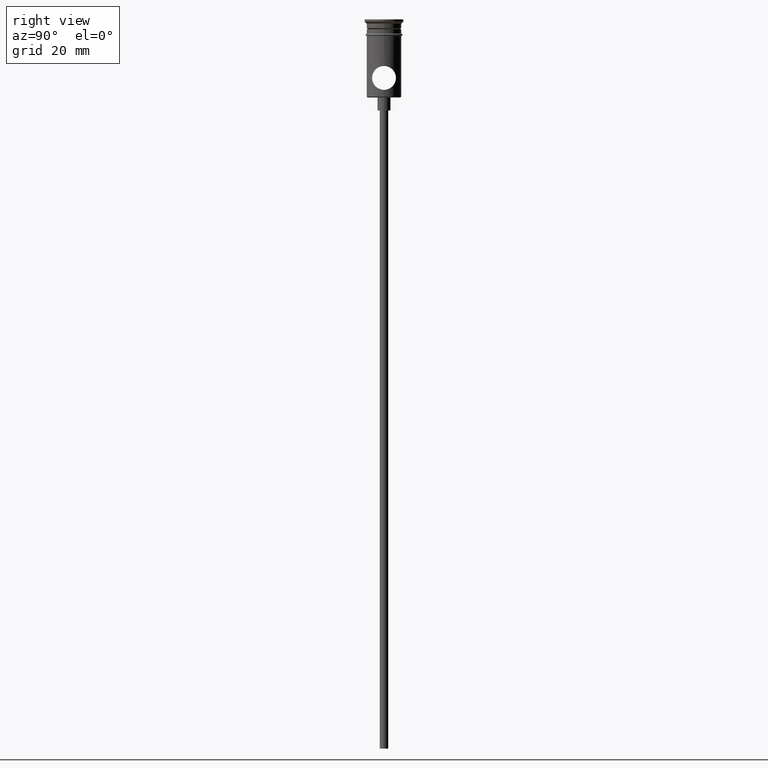
[diagram: clean part render]
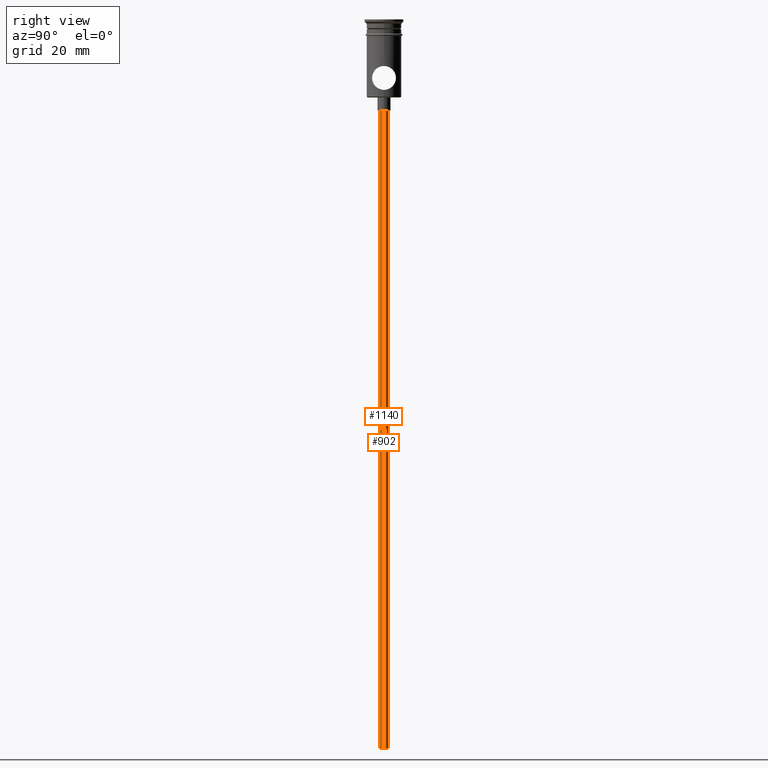
[diagram: same view with one multi-face feature highlighted, each face labeled with its STEP entity id]
A machine part, right view. The highlighted faces form ONE feature: a constant-radius fillet chain: 2 tangent blend faces with common blend radius 1 mm. The faces share edges in the B-rep.
Their STEP definitions:
[1] entity #1140 (Cylinder):
#2 = EDGE_CURVE ( 'NONE', #297, #452, #1032, .T. ) ;
#94 = CARTESIAN_POINT ( 'NONE',  ( 0.9999999999999997780, 0.000000000000000000, -167.9999999999999716 ) ) ;
#122 = ORIENTED_EDGE ( 'NONE', *, *, #1400, .F. ) ;
#145 = CARTESIAN_POINT ( 'NONE',  ( -0.9999999999999997780, 1.224646799147352961E-16, -20.99999999999999645 ) ) ;
#146 = EDGE_CURVE ( 'NONE', #452, #1413, #221, .T. ) ;
#154 = CARTESIAN_POINT ( 'NONE',  ( 0.000000000000000000, 0.000000000000000000, -20.99999999999999645 ) ) ;
#164 = FACE_OUTER_BOUND ( 'NONE', #371, .T. ) ;
#177 = DIRECTION ( 'NONE',  ( -0.000000000000000000, -0.000000000000000000, 1.000000000000000000 ) ) ;
#221 = CIRCLE ( 'NONE', #327, 0.9999999999999997780 ) ;
#297 = VERTEX_POINT ( 'NONE', #94 ) ;
#317 = EDGE_CURVE ( 'NONE', #297, #331, #934, .T. ) ;
#327 = AXIS2_PLACEMENT_3D ( 'NONE', #154, #1345, #716 ) ;
#331 = VERTEX_POINT ( 'NONE', #765 ) ;
#366 = VECTOR ( 'NONE', #1364, 1000.000000000000000 ) ;
#371 = EDGE_LOOP ( 'NONE', ( #122, #1249, #1039, #1225 ) ) ;
#379 = CYLINDRICAL_SURFACE ( 'NONE', #641, 0.9999999999999997780 ) ;
#406 = CARTESIAN_POINT ( 'NONE',  ( 0.9999999999999997780, 0.000000000000000000, -20.99999999999999645 ) ) ;
#452 = VERTEX_POINT ( 'NONE', #406 ) ;
#494 = CARTESIAN_POINT ( 'NONE',  ( 0.9999999999999997780, 0.000000000000000000, -167.9999999999999716 ) ) ;
#495 = CARTESIAN_POINT ( 'NONE',  ( 0.000000000000000000, 0.000000000000000000, -167.9999999999999716 ) ) ;
#641 = AXIS2_PLACEMENT_3D ( 'NONE', #495, #177, #926 ) ;
#667 = DIRECTION ( 'NONE',  ( 0.000000000000000000, 0.000000000000000000, -1.000000000000000000 ) ) ;
#716 = DIRECTION ( 'NONE',  ( -1.000000000000000000, 0.000000000000000000, 0.000000000000000000 ) ) ;
#765 = CARTESIAN_POINT ( 'NONE',  ( -0.9999999999999997780, 1.224646799147352961E-16, -167.9999999999999716 ) ) ;
#926 = DIRECTION ( 'NONE',  ( 1.000000000000000000, 0.000000000000000000, 0.000000000000000000 ) ) ;
#934 = CIRCLE ( 'NONE', #1356, 0.9999999999999997780 ) ;
#977 = CARTESIAN_POINT ( 'NONE',  ( 0.000000000000000000, 0.000000000000000000, -167.9999999999999716 ) ) ;
#1030 = DIRECTION ( 'NONE',  ( -0.000000000000000000, -0.000000000000000000, 1.000000000000000000 ) ) ;
#1032 = LINE ( 'NONE', #494, #366 ) ;
#1039 = ORIENTED_EDGE ( 'NONE', *, *, #2, .T. ) ;
#1098 = DIRECTION ( 'NONE',  ( -1.000000000000000000, 0.000000000000000000, 0.000000000000000000 ) ) ;
#1140 = ADVANCED_FACE ( 'NONE', ( #164 ), #379, .T. ) ;
#1225 = ORIENTED_EDGE ( 'NONE', *, *, #146, .T. ) ;
#1249 = ORIENTED_EDGE ( 'NONE', *, *, #317, .F. ) ;
#1345 = DIRECTION ( 'NONE',  ( 0.000000000000000000, 0.000000000000000000, -1.000000000000000000 ) ) ;
#1354 = LINE ( 'NONE', #1371, #1362 ) ;
#1356 = AXIS2_PLACEMENT_3D ( 'NONE', #977, #667, #1098 ) ;
#1362 = VECTOR ( 'NONE', #1030, 1000.000000000000000 ) ;
#1364 = DIRECTION ( 'NONE',  ( -0.000000000000000000, -0.000000000000000000, 1.000000000000000000 ) ) ;
#1371 = CARTESIAN_POINT ( 'NONE',  ( -0.9999999999999997780, 1.224646799147352961E-16, -167.9999999999999716 ) ) ;
#1400 = EDGE_CURVE ( 'NONE', #331, #1413, #1354, .T. ) ;
#1413 = VERTEX_POINT ( 'NONE', #145 ) ;
[2] entity #902 (Cylinder):
#2 = EDGE_CURVE ( 'NONE', #297, #452, #1032, .T. ) ;
#7 = CIRCLE ( 'NONE', #218, 0.9999999999999997780 ) ;
#23 = EDGE_LOOP ( 'NONE', ( #988, #109, #834, #205 ) ) ;
#51 = DIRECTION ( 'NONE',  ( -1.000000000000000000, 0.000000000000000000, 0.000000000000000000 ) ) ;
#71 = CARTESIAN_POINT ( 'NONE',  ( 0.000000000000000000, 0.000000000000000000, -167.9999999999999716 ) ) ;
#86 = DIRECTION ( 'NONE',  ( 1.000000000000000000, 0.000000000000000000, 0.000000000000000000 ) ) ;
#94 = CARTESIAN_POINT ( 'NONE',  ( 0.9999999999999997780, 0.000000000000000000, -167.9999999999999716 ) ) ;
#109 = ORIENTED_EDGE ( 'NONE', *, *, #1400, .T. ) ;
#145 = CARTESIAN_POINT ( 'NONE',  ( -0.9999999999999997780, 1.224646799147352961E-16, -20.99999999999999645 ) ) ;
#205 = ORIENTED_EDGE ( 'NONE', *, *, #2, .F. ) ;
#216 = CIRCLE ( 'NONE', #1391, 0.9999999999999997780 ) ;
#218 = AXIS2_PLACEMENT_3D ( 'NONE', #250, #1035, #381 ) ;
#250 = CARTESIAN_POINT ( 'NONE',  ( 0.000000000000000000, 0.000000000000000000, -20.99999999999999645 ) ) ;
#297 = VERTEX_POINT ( 'NONE', #94 ) ;
#331 = VERTEX_POINT ( 'NONE', #765 ) ;
#366 = VECTOR ( 'NONE', #1364, 1000.000000000000000 ) ;
#381 = DIRECTION ( 'NONE',  ( -1.000000000000000000, 0.000000000000000000, 0.000000000000000000 ) ) ;
#406 = CARTESIAN_POINT ( 'NONE',  ( 0.9999999999999997780, 0.000000000000000000, -20.99999999999999645 ) ) ;
#452 = VERTEX_POINT ( 'NONE', #406 ) ;
#494 = CARTESIAN_POINT ( 'NONE',  ( 0.9999999999999997780, 0.000000000000000000, -167.9999999999999716 ) ) ;
#585 = CYLINDRICAL_SURFACE ( 'NONE', #674, 0.9999999999999997780 ) ;
#674 = AXIS2_PLACEMENT_3D ( 'NONE', #1238, #743, #86 ) ;
#683 = EDGE_CURVE ( 'NONE', #331, #297, #216, .T. ) ;
#696 = FACE_OUTER_BOUND ( 'NONE', #23, .T. ) ;
#724 = DIRECTION ( 'NONE',  ( 0.000000000000000000, 0.000000000000000000, -1.000000000000000000 ) ) ;
#743 = DIRECTION ( 'NONE',  ( -0.000000000000000000, -0.000000000000000000, 1.000000000000000000 ) ) ;
#765 = CARTESIAN_POINT ( 'NONE',  ( -0.9999999999999997780, 1.224646799147352961E-16, -167.9999999999999716 ) ) ;
#834 = ORIENTED_EDGE ( 'NONE', *, *, #851, .T. ) ;
#851 = EDGE_CURVE ( 'NONE', #1413, #452, #7, .T. ) ;
#902 = ADVANCED_FACE ( 'NONE', ( #696 ), #585, .T. ) ;
#988 = ORIENTED_EDGE ( 'NONE', *, *, #683, .F. ) ;
#1030 = DIRECTION ( 'NONE',  ( -0.000000000000000000, -0.000000000000000000, 1.000000000000000000 ) ) ;
#1032 = LINE ( 'NONE', #494, #366 ) ;
#1035 = DIRECTION ( 'NONE',  ( 0.000000000000000000, 0.000000000000000000, -1.000000000000000000 ) ) ;
#1238 = CARTESIAN_POINT ( 'NONE',  ( 0.000000000000000000, 0.000000000000000000, -167.9999999999999716 ) ) ;
#1354 = LINE ( 'NONE', #1371, #1362 ) ;
#1362 = VECTOR ( 'NONE', #1030, 1000.000000000000000 ) ;
#1364 = DIRECTION ( 'NONE',  ( -0.000000000000000000, -0.000000000000000000, 1.000000000000000000 ) ) ;
#1371 = CARTESIAN_POINT ( 'NONE',  ( -0.9999999999999997780, 1.224646799147352961E-16, -167.9999999999999716 ) ) ;
#1391 = AXIS2_PLACEMENT_3D ( 'NONE', #71, #724, #51 ) ;
#1400 = EDGE_CURVE ( 'NONE', #331, #1413, #1354, .T. ) ;
#1413 = VERTEX_POINT ( 'NONE', #145 ) ;